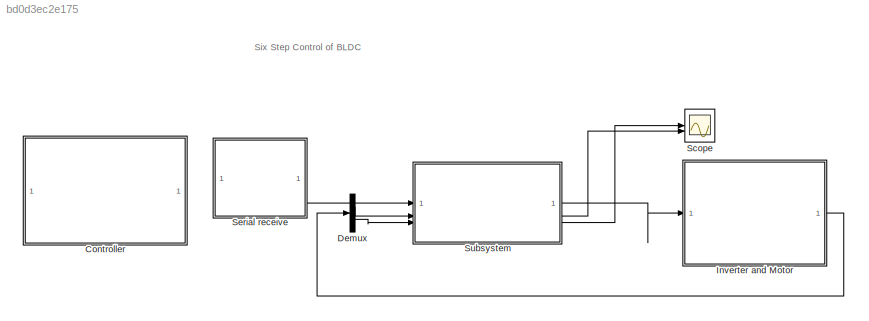
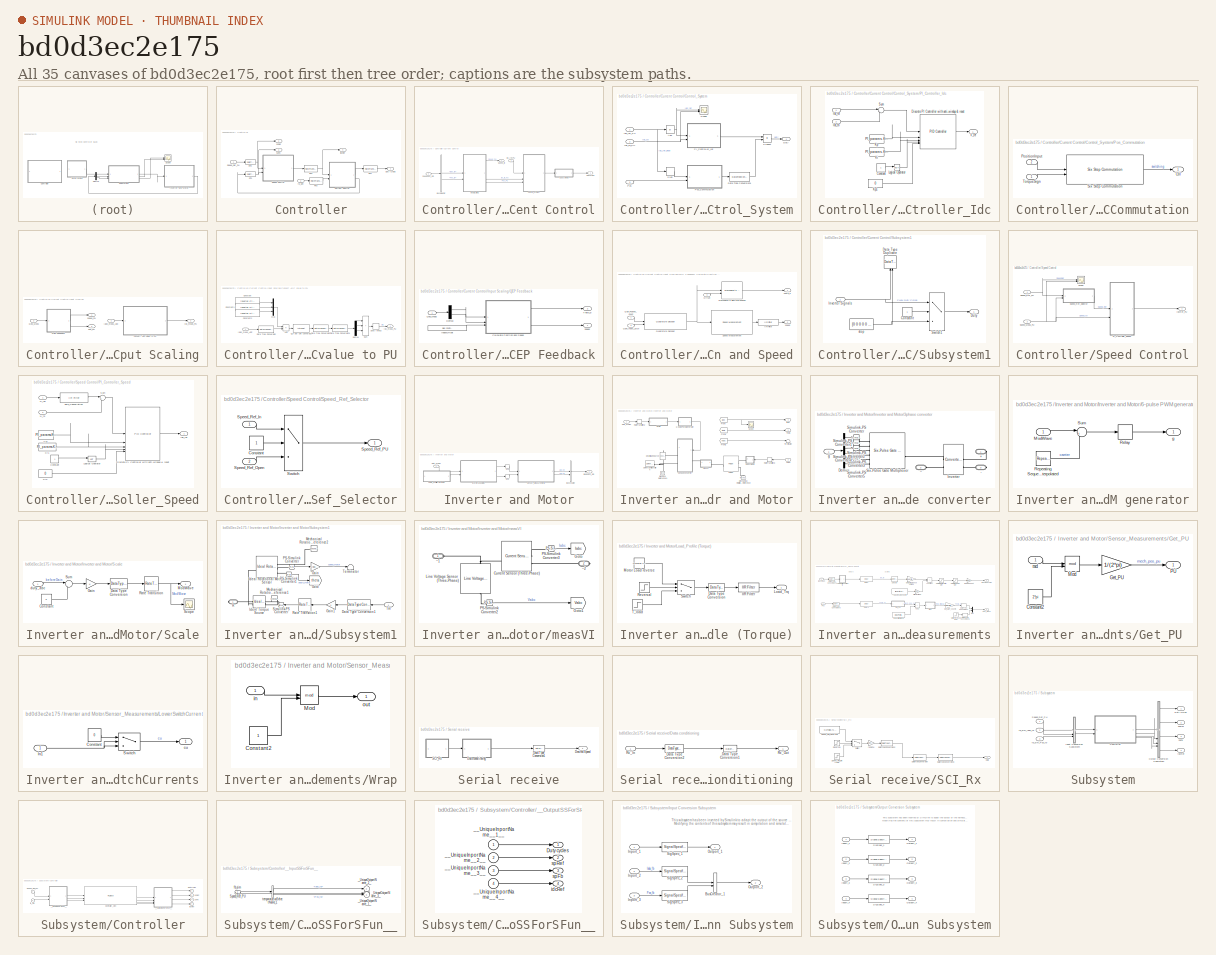
[diagram: thumbnail index - all 35 canvases of the model, root first then tree order]
MODEL slx_bd0d3ec2e175
KIND model
CONFIG AbsTol = auto
CONFIG EnableMultiTasking = on
CONFIG FixedStep = auto
CONFIG MaxStep = auto
CONFIG MinStep = auto
CONFIG RelTol = 1e-3
CONFIG SampleTimeConstraint = Unconstrained
CONFIG SolverName = FixedStepDiscrete
CONFIG StartTime = 0.0
CONFIG StopTime = 2
BLOCK [SubSystem] Controller
  Commented = on
  TreatAsAtomicUnit = on
BLOCK [SubSystem] Controller/Current Control
  RTWMemSecFuncExecute = code_ramfuncs
  RTWSystemCode = Nonreusable function
BLOCK [BusSelector] Controller/Current Control/Bus Selector
  OutputSignals = Iabc_fb,Pos_fb
BLOCK [SubSystem] Controller/Current Control/Control_System
BLOCK [Abs] Controller/Current Control/Control_System/Abs
  SaturateOnIntegerOverflow = off
BLOCK [DataTypeConversion] Controller/Current Control/Control_System/Data Type Conversion1
  OutDataTypeStr = dataType
  RndMeth = Simplest
  SaturateOnIntegerOverflow = off
BLOCK [Outport] Controller/Current Control/Control_System/Duty
  VectorParamsAs1DForOutWhenUnconnected = off
BLOCK [Inport] Controller/Current Control/Control_System/Idc_fb_PU
  Port = 2
BLOCK [Inport] Controller/Current Control/Control_System/Idc_ref_PU
BLOCK [SubSystem] Controller/Current Control/Control_System/PI_Controller_Idc
BLOCK [Constant] Controller/Current Control/Control_System/PI_Controller_Idc/Constant
BLOCK [Reference] Controller/Current Control/Control_System/PI_Controller_Idc/Discrete PI Controller with anti-windup & reset  REF=slpidlib/PID Controller
  LibrarySourceBlock = mcbcontrolslib/PI Controller
  SourceBlock = slpidlib/PID Controller
  SourceType = PID 1dof
BLOCK [Inport] Controller/Current Control/Control_System/PI_Controller_Idc/Idc_fb
  Port = 2
BLOCK [Inport] Controller/Current Control/Control_System/PI_Controller_Idc/Idc_ref
BLOCK [Constant] Controller/Current Control/Control_System/PI_Controller_Idc/Ki
  NameLocation = left
  OutDataTypeStr = dataType
  SampleTime = -1
  Value = PI_params.Ki_i*Ts
BLOCK [Constant] Controller/Current Control/Control_System/PI_Controller_Idc/Kp
  NameLocation = left
  OutDataTypeStr = dataType
  SampleTime = -1
  Value = PI_params.Kp_i
BLOCK [Constant] Controller/Current Control/Control_System/PI_Controller_Idc/Kp1
  NameLocation = top
  OutDataTypeStr = dataType
  SampleTime = -1
  Value = 0
BLOCK [Logic] Controller/Current Control/Control_System/PI_Controller_Idc/Logical Operator
  AllPortsSameDT = off
  IconShape = distinctive
  Operator = NOT
  OutDataTypeStr = boolean
BLOCK [Sum] Controller/Current Control/Control_System/PI_Controller_Idc/Sum
  AccumDataTypeStr = Inherit: Same as first input
  Inputs = |+-
  OutDataTypeStr = Inherit: Same as first input
BLOCK [Outport] Controller/Current Control/Control_System/PI_Controller_Idc/V_ref
  VectorParamsAs1DForOutWhenUnconnected = off
BLOCK [Inport] Controller/Current Control/Control_System/Pos
  Port = 3
BLOCK [SubSystem] Controller/Current Control/Control_System/Pos_Commutation
BLOCK [Outport] Controller/Current Control/Control_System/Pos_Commutation/Ctrl
BLOCK [Inport] Controller/Current Control/Control_System/Pos_Commutation/PositionInput
  Port = 2
BLOCK [Reference] Controller/Current Control/Control_System/Pos_Commutation/Six Step Commutation  REF=mcbcontrolslib/Six Step Commutation
  SourceBlock = mcbcontrolslib/Six Step Commutation
  SourceType = Six-Step Commutation
BLOCK [Inport] Controller/Current Control/Control_System/Pos_Commutation/TorqueSign
BLOCK [Product] Controller/Current Control/Control_System/Product
  OutDataTypeStr = Inherit: Same as first input
  RndMeth = Simplest
BLOCK [Scope] Controller/Current Control/Control_System/Scope
  Floating = off
  NumInputPorts = 2
  ScopeSpecificationString = Simulink.scopes.TimeScopeBlockCfg('CurrentConfiguration', extmgr.ConfigurationSet(extmgr.Configuration('Core','General UI',true,'FigureColor',[1 1 1]),extmgr.Configuration('Core','Source UI',true),extmgr.Configuration('Sources','WiredSimulink',true,'DataLoggingVariableName','ScopeData1'),extmgr.Configuration('Visuals','Time Domain',true,'SerializedDisplays',{struct('MinYLimReal','-0.125','MaxYLimR...<+2250ch>
BLOCK [Signum] Controller/Current Control/Control_System/Sign
BLOCK [Outport] Controller/Current Control/Duty Cycles
  InitialOutput = 0
  VectorParamsAs1DForOutWhenUnconnected = off
BLOCK [Inport] Controller/Current Control/Feedback_sim
  Port = 2
BLOCK [Inport] Controller/Current Control/Idc_ref_PU
BLOCK [SubSystem] Controller/Current Control/Input Scaling
BLOCK [SubSystem] Controller/Current Control/Input Scaling/Convert ADC value to PU
BLOCK [Sum] Controller/Current Control/Input Scaling/Convert ADC value to PU/Add
  IconShape = rectangular
  Inputs = -+
BLOCK [Constant] Controller/Current Control/Input Scaling/Convert ADC value to PU/Constant
  Value = inverter.CtSensAOffset
BLOCK [Constant] Controller/Current Control/Input Scaling/Convert ADC value to PU/Constant1
  Value = inverter.CtSensBOffset
BLOCK [Constant] Controller/Current Control/Input Scaling/Convert ADC value to PU/Constant2
  Value = inverter.CtSensCOffset
BLOCK [DataTypeConversion] Controller/Current Control/Input Scaling/Convert ADC value to PU/Data Type Conversion
  ConvertRealWorld = Stored Integer (SI)
  OutDataTypeStr = int32
  RndMeth = Floor
  SaturateOnIntegerOverflow = off
BLOCK [DataTypeConversion] Controller/Current Control/Input Scaling/Convert ADC value to PU/Data Type Conversion1
  OutDataTypeStr = dataType
  RndMeth = Floor
  SaturateOnIntegerOverflow = off
BLOCK [DataTypeConversion] Controller/Current Control/Input Scaling/Convert ADC value to PU/Data Type Conversion3
  ConvertRealWorld = Stored Integer (SI)
  OutDataTypeStr = fixdt(1,32,17)
  RndMeth = Simplest
  SaturateOnIntegerOverflow = off
BLOCK [Demux] Controller/Current Control/Input Scaling/Convert ADC value to PU/Demux
  Outputs = 3
BLOCK [Inport] Controller/Current Control/Input Scaling/Convert ADC value to PU/Iabc_meas_ADC
BLOCK [Outport] Controller/Current Control/Input Scaling/Convert ADC value to PU/Idc_meas_PU
BLOCK [Mux] Controller/Current Control/Input Scaling/Convert ADC value to PU/Mux
  DisplayOption = bar
  Inputs = 3
BLOCK [ArithShift] Controller/Current Control/Input Scaling/Convert ADC value to PU/Q17 per unit conversion
  BitShiftNumber = -6
  InputPortMap = u0
BLOCK [Sum] Controller/Current Control/Input Scaling/Convert ADC value to PU/Sum
  IconShape = rectangular
  Inputs = |+++
BLOCK [UnaryMinus] Controller/Current Control/Input Scaling/Convert ADC value to PU/Unary Minus
BLOCK [Inport] Controller/Current Control/Input Scaling/Iabc_meas_ADC
BLOCK [Outport] Controller/Current Control/Input Scaling/Idc_meas_PU
  Port = 2
  VectorParamsAs1DForOutWhenUnconnected = off
BLOCK [Outport] Controller/Current Control/Input Scaling/Pos_PU
  InitialOutput = 0
  Port = 3
  VectorParamsAs1DForOutWhenUnconnected = off
BLOCK [SubSystem] Controller/Current Control/Input Scaling/QEP Feedback
  TreatAsAtomicUnit = on
BLOCK [SubSystem] Controller/Current Control/Input Scaling/QEP Feedback/ Calculate Position and Speed
BLOCK [Reference] Controller/Current Control/Input Scaling/QEP Feedback/ Calculate Position and Speed/IIR Filter  REF=mcbcontrolslib/IIR Filter
  SourceBlock = mcbcontrolslib/IIR Filter
  SourceType = IIR Filter
BLOCK [Reference] Controller/Current Control/Input Scaling/QEP Feedback/ Calculate Position and Speed/Mechanical to Electrical Position  REF=mcbpositiondecoderlib/Mechanical to Electrical Position
  SourceBlock = mcbpositiondecoderlib/Mechanical to Electrical Position
  SourceType = Mechanical to Electrical Position
BLOCK [Inport] Controller/Current Control/Input Scaling/QEP Feedback/ Calculate Position and Speed/Offset
  Port = 3
BLOCK [Inport] Controller/Current Control/Input Scaling/QEP Feedback/ Calculate Position and Speed/QEP_Index_Latch
  Port = 2
BLOCK [Inport] Controller/Current Control/Input Scaling/QEP Feedback/ Calculate Position and Speed/QEP_Position_Count
BLOCK [Reference] Controller/Current Control/Input Scaling/QEP Feedback/ Calculate Position and Speed/Quadrature Decoder  REF=mcbpositiondecoderlib/Quadrature Decoder
  SourceBlock = mcbpositiondecoderlib/Quadrature Decoder
  SourceType = Quadrature Decoder
BLOCK [Reference] Controller/Current Control/Input Scaling/QEP Feedback/ Calculate Position and Speed/Speed Measurement  REF=mcbpositiondecoderlib/Speed Measurement
  SourceBlock = mcbpositiondecoderlib/Speed Measurement
  SourceType = Speed Measurement
BLOCK [Outport] Controller/Current Control/Input Scaling/QEP Feedback/ Calculate Position and Speed/Theta_e
  VectorParamsAs1DForOutWhenUnconnected = off
BLOCK [Outport] Controller/Current Control/Input Scaling/QEP Feedback/ Calculate Position and Speed/speed
  Port = 2
  VectorParamsAs1DForOutWhenUnconnected = off
BLOCK [Demux] Controller/Current Control/Input Scaling/QEP Feedback/Demux
  Outputs = 2
BLOCK [Constant] Controller/Current Control/Input Scaling/QEP Feedback/IndexOffset
  OutDataTypeStr = dataType
  SampleTime = -1
  Value = bldc.PositionOffset
BLOCK [Inport] Controller/Current Control/Input Scaling/QEP Feedback/Qep_Meas
BLOCK [Outport] Controller/Current Control/Input Scaling/QEP Feedback/Theta_e
  Port = 2
BLOCK [Outport] Controller/Current Control/Input Scaling/QEP Feedback/speed
BLOCK [Inport] Controller/Current Control/Input Scaling/Qep_Meas
  Port = 2
BLOCK [Outport] Controller/Current Control/Input Scaling/speed_PU
  InitialOutput = 0
  VectorParamsAs1DForOutWhenUnconnected = off
BLOCK [Outport] Controller/Current Control/Speed_fb
  InitialOutput = 0
  Port = 2
  VectorParamsAs1DForOutWhenUnconnected = off
BLOCK [SubSystem] Controller/Current Control/Subsystem1
BLOCK [Constant] Controller/Current Control/Subsystem1/Constant
BLOCK [DataTypeDuplicate] Controller/Current Control/Subsystem1/Data Type Duplicate
BLOCK [Outport] Controller/Current Control/Subsystem1/Duty
  VectorParamsAs1DForOutWhenUnconnected = off
BLOCK [Inport] Controller/Current Control/Subsystem1/Inverter Signals
BLOCK [Switch] Controller/Current Control/Subsystem1/Switch1
  InputSameDT = off
  RndMeth = Simplest
  SaturateOnIntegerOverflow = off
  Threshold = 0.5
BLOCK [Constant] Controller/Current Control/Subsystem1/stop
  OutDataTypeStr = Inherit: Inherit via back propagation
  Value = [0 0 0 0 0 0]
BLOCK [Outport] Controller/Duty cycles
BLOCK [RateTransition] Controller/RT1
  Deterministic = off
  NameLocation = top
  OutPortSampleTime = Ts_speed
BLOCK [RateTransition] Controller/RT2
  Deterministic = off
BLOCK [RateTransition] Controller/RT3
  Deterministic = off
BLOCK [RateTransition] Controller/RT4
  Deterministic = off
BLOCK [RateTransition] Controller/RT9
  Deterministic = off
BLOCK [SubSystem] Controller/Speed Control
  RTWSystemCode = Reusable function
  SystemSampleTime = Ts_speed
  TreatAsAtomicUnit = on
BLOCK [Outport] Controller/Speed Control/IdcRef_PU
  VectorParamsAs1DForOutWhenUnconnected = off
BLOCK [SubSystem] Controller/Speed Control/PI_Controller_Speed
BLOCK [Constant] Controller/Speed Control/PI_Controller_Speed/Constant
BLOCK [Reference] Controller/Speed Control/PI_Controller_Speed/Discrete PI Controller with anti-windup & reset  REF=slpidlib/PID Controller
  LibrarySourceBlock = mcbcontrolslib/PI Controller
  SourceBlock = slpidlib/PID Controller
  SourceType = PID 1dof
BLOCK [Outport] Controller/Speed Control/PI_Controller_Speed/Idc_ref
  VectorParamsAs1DForOutWhenUnconnected = off
BLOCK [Constant] Controller/Speed Control/PI_Controller_Speed/Ki1
  NameLocation = top
  OutDataTypeStr = dataType
  SampleTime = -1
  Value = PI_params.Ki_speed*Ts_speed
BLOCK [Constant] Controller/Speed Control/PI_Controller_Speed/Ki2
  NameLocation = top
  OutDataTypeStr = dataType
  SampleTime = -1
  Value = 0
BLOCK [Constant] Controller/Speed Control/PI_Controller_Speed/Kp1
  NameLocation = top
  OutDataTypeStr = dataType
  SampleTime = -1
  Value = PI_params.Kp_speed
BLOCK [Logic] Controller/Speed Control/PI_Controller_Speed/Logical Operator
  AllPortsSameDT = off
  IconShape = distinctive
  Operator = NOT
  OutDataTypeStr = boolean
BLOCK [Inport] Controller/Speed Control/PI_Controller_Speed/N_fb
  Port = 2
BLOCK [Inport] Controller/Speed Control/PI_Controller_Speed/N_ref
BLOCK [Sum] Controller/Speed Control/PI_Controller_Speed/Sum
  AccumDataTypeStr = Inherit: Same as first input
  Inputs = |+-
  RndMeth = Round
BLOCK [Reference] Controller/Speed Control/PI_Controller_Speed/Zero_Cancellation  REF=mcbcontrolslib/IIR Filter
  SourceBlock = mcbcontrolslib/IIR Filter
  SourceType = IIR Filter
BLOCK [Scope] Controller/Speed Control/Scope
  Floating = off
  NumInputPorts = 2
  ScopeSpecificationString = Simulink.scopes.TimeScopeBlockCfg('CurrentConfiguration', extmgr.ConfigurationSet(extmgr.Configuration('Core','General UI',true,'FigureColor',[1 1 1]),extmgr.Configuration('Core','Source UI',true),extmgr.Configuration('Sources','WiredSimulink',true,'DataLoggingSaveFormat','Array','DataLoggingLimitDataPoints',true,'DataLoggingDecimation','1'),extmgr.Configuration('Visuals','Time Domain',true,'PlotT...<+1938ch>
BLOCK [Inport] Controller/Speed Control/Speed_Meas_PU
  Port = 2
BLOCK [Inport] Controller/Speed Control/Speed_Ref_PU
BLOCK [SubSystem] Controller/Speed Control/Speed_Ref_Selector
BLOCK [Constant] Controller/Speed Control/Speed_Ref_Selector/Constant
BLOCK [Inport] Controller/Speed Control/Speed_Ref_Selector/Speed_Ref_In
BLOCK [Inport] Controller/Speed Control/Speed_Ref_Selector/Speed_Ref_Open
  Port = 2
BLOCK [Outport] Controller/Speed Control/Speed_Ref_Selector/Speed_Ref_PU
BLOCK [Switch] Controller/Speed Control/Speed_Ref_Selector/Switch
  Criteria = u2 > Threshold
  InputSameDT = off
  SaturateOnIntegerOverflow = off
  Threshold = 0.5
BLOCK [Inport] Controller/Speed_Ref_PU
BLOCK [Inport] Controller/fb_sim
  Port = 2
BLOCK [Outport] Controller/idcRef
  Port = 4
BLOCK [Outport] Controller/spFb
  Port = 3
BLOCK [Outport] Controller/spRef
  Port = 2
BLOCK [Demux] Demux
  Outputs = 2
BLOCK [SubSystem] Inverter and Motor
BLOCK [BusCreator] Inverter and Motor/Bus Creator
  DisplayOption = bar
  InheritFromInputs = on
  Inputs = 2
BLOCK [Inport] Inverter and Motor/Duty_Cycles
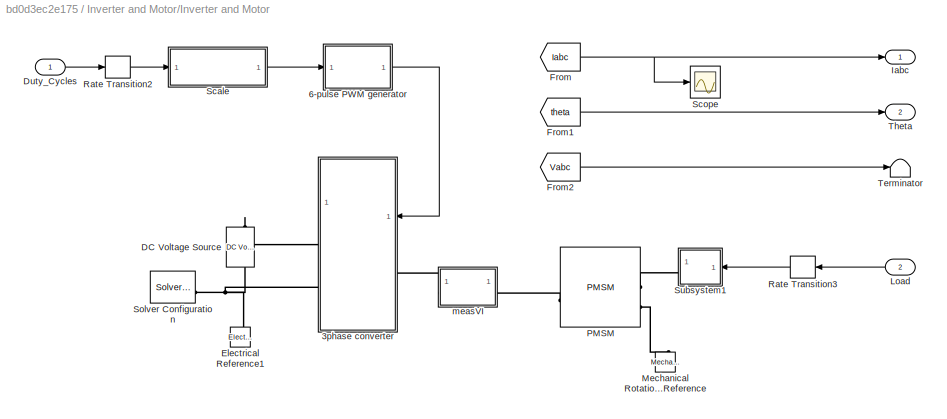
BLOCK [SubSystem] Inverter and Motor/Inverter and Motor
  VariantControl = get_param([bdroot '/Plant'],'Value')=='0'
BLOCK [SubSystem] Inverter and Motor/Inverter and Motor/3phase converter
  NameLocation = top
BLOCK [PMIOPort] Inverter and Motor/Inverter and Motor/3phase converter/+
  Side = Right
BLOCK [PMIOPort] Inverter and Motor/Inverter and Motor/3phase converter/-
  Port = 3
  Side = Right
BLOCK [Demux] Inverter and Motor/Inverter and Motor/3phase converter/Demux
  Outputs = 6
BLOCK [Reference] Inverter and Motor/Inverter and Motor/3phase converter/Inverter  REF=ee_lib/Semiconductors &
Converters/Converters/Converter
(Three-Phase)
  SourceBlock = ee_lib/Semiconductors &\nConverters/Converters/Converter\n(Three-Phase)
  SourceType = Converter\n(Three-Phase)
BLOCK [Reference] Inverter and Motor/Inverter and Motor/3phase converter/Simulink-PS Converter  REF=nesl_utility/Simulink-PS
Converter
  SourceBlock = nesl_utility/Simulink-PS\nConverter
  SourceType = Simulink-PS\nConverter
BLOCK [Reference] Inverter and Motor/Inverter and Motor/3phase converter/Simulink-PS Converter1  REF=nesl_utility/Simulink-PS
Converter
  SourceBlock = nesl_utility/Simulink-PS\nConverter
  SourceType = Simulink-PS\nConverter
BLOCK [Reference] Inverter and Motor/Inverter and Motor/3phase converter/Simulink-PS Converter2  REF=nesl_utility/Simulink-PS
Converter
  SourceBlock = nesl_utility/Simulink-PS\nConverter
  SourceType = Simulink-PS\nConverter
BLOCK [Reference] Inverter and Motor/Inverter and Motor/3phase converter/Simulink-PS Converter3  REF=nesl_utility/Simulink-PS
Converter
  SourceBlock = nesl_utility/Simulink-PS\nConverter
  SourceType = Simulink-PS\nConverter
BLOCK [Reference] Inverter and Motor/Inverter and Motor/3phase converter/Simulink-PS Converter4  REF=nesl_utility/Simulink-PS
Converter
  SourceBlock = nesl_utility/Simulink-PS\nConverter
  SourceType = Simulink-PS\nConverter
BLOCK [Reference] Inverter and Motor/Inverter and Motor/3phase converter/Simulink-PS Converter5  REF=nesl_utility/Simulink-PS
Converter
  SourceBlock = nesl_utility/Simulink-PS\nConverter
  SourceType = Simulink-PS\nConverter
BLOCK [Reference] Inverter and Motor/Inverter and Motor/3phase converter/Six-Pulse Gate Multiplexer  REF=ee_lib/Semiconductors &
Converters/Converters/Six-Pulse Gate
Multiplexer
  SourceBlock = ee_lib/Semiconductors &\nConverters/Converters/Six-Pulse Gate\nMultiplexer
  SourceType = Six-Pulse Gate\nMultiplexer
BLOCK [Inport] Inverter and Motor/Inverter and Motor/3phase converter/g
BLOCK [PMIOPort] Inverter and Motor/Inverter and Motor/3phase converter/~
  Port = 2
  Side = Left
BLOCK [SubSystem] Inverter and Motor/Inverter and Motor/6-pulse PWM generator
BLOCK [Inport] Inverter and Motor/Inverter and Motor/6-pulse PWM generator/ModWave
BLOCK [Relay] Inverter and Motor/Inverter and Motor/6-pulse PWM generator/Relay
BLOCK [Reference] Inverter and Motor/Inverter and Motor/6-pulse PWM generator/Repeating Sequence Interpolated  REF=simulink/Sources/Repeating
Sequence
Interpolated
  SourceBlock = simulink/Sources/Repeating\nSequence\nInterpolated
  SourceType = Repeating Sequence Interpolated
BLOCK [Sum] Inverter and Motor/Inverter and Motor/6-pulse PWM generator/Sum
  Inputs = |+-
BLOCK [Outport] Inverter and Motor/Inverter and Motor/6-pulse PWM generator/g
  NameLocation = top
BLOCK [Reference] Inverter and Motor/Inverter and Motor/DC Voltage Source  REF=fl_lib/Electrical/Electrical Sources/DC Voltage Source
  NameLocation = left
  SourceBlock = fl_lib/Electrical/Electrical Sources/DC Voltage Source
  SourceType = DC Voltage Source
BLOCK [Inport] Inverter and Motor/Inverter and Motor/Duty_Cycles
BLOCK [Reference] Inverter and Motor/Inverter and Motor/Electrical Reference1  REF=fl_lib/Electrical/Electrical Elements/Electrical Reference
  NameLocation = right
  SourceBlock = fl_lib/Electrical/Electrical Elements/Electrical Reference
  SourceType = Electrical Reference
BLOCK [From] Inverter and Motor/Inverter and Motor/From
  GotoTag = Iabc
  TagVisibility = global
BLOCK [From] Inverter and Motor/Inverter and Motor/From1
  GotoTag = theta
  TagVisibility = global
BLOCK [From] Inverter and Motor/Inverter and Motor/From2
  GotoTag = Vabc
  TagVisibility = global
BLOCK [Outport] Inverter and Motor/Inverter and Motor/Iabc
BLOCK [Inport] Inverter and Motor/Inverter and Motor/Load
  Port = 2
BLOCK [Reference] Inverter and Motor/Inverter and Motor/Mechanical Rotational Reference  REF=fl_lib/Mechanical/Rotational Elements/Mechanical
Rotational Reference
  NameLocation = right
  SourceBlock = fl_lib/Mechanical/Rotational Elements/Mechanical\nRotational Reference
  SourceType = Mechanical\nRotational Reference
BLOCK [Reference] Inverter and Motor/Inverter and Motor/PMSM  REF=ee_lib/Electromechanical/Permanent Magnet/PMSM
  SourceBlock = ee_lib/Electromechanical/Permanent Magnet/PMSM
  SourceType = PMSM
BLOCK [RateTransition] Inverter and Motor/Inverter and Motor/Rate Transition2
  Deterministic = off
  OutPortSampleTime = Ts_motor_simscape
BLOCK [RateTransition] Inverter and Motor/Inverter and Motor/Rate Transition3
  Deterministic = off
  NameLocation = top
  OutPortSampleTime = Ts_motor_simscape
BLOCK [SubSystem] Inverter and Motor/Inverter and Motor/Scale
BLOCK [Constant] Inverter and Motor/Inverter and Motor/Scale/Constant
  OutDataTypeStr = single
  SampleTime = Ts_motor_simscape
  Value = 0
BLOCK [DataTypeConversion] Inverter and Motor/Inverter and Motor/Scale/Data Type Conversion
  RndMeth = Floor
  SaturateOnIntegerOverflow = off
BLOCK [Gain] Inverter and Motor/Inverter and Motor/Scale/Gain
BLOCK [Outport] Inverter and Motor/Inverter and Motor/Scale/ModWave
BLOCK [RateTransition] Inverter and Motor/Inverter and Motor/Scale/Rate Transition
BLOCK [Scope] Inverter and Motor/Inverter and Motor/Scale/Scope
  Floating = off
  NumInputPorts = 1
  ScopeSpecificationString = Simulink.scopes.TimeScopeBlockCfg('CurrentConfiguration', extmgr.ConfigurationSet(extmgr.Configuration('Core','General UI',true),extmgr.Configuration('Core','Source UI',true),extmgr.Configuration('Sources','WiredSimulink',true,'DataLoggingVariableName','ScopeData1'),extmgr.Configuration('Visuals','Time Domain',true,'SerializedDisplays',{struct('MinYLimReal','-0.125','MaxYLimReal','1.125','YLabelRe...<+1481ch>
BLOCK [Sum] Inverter and Motor/Inverter and Motor/Scale/Sum
  Inputs = |++
BLOCK [Inport] Inverter and Motor/Inverter and Motor/Scale/duty_abc
BLOCK [Scope] Inverter and Motor/Inverter and Motor/Scope
  Floating = off
  NumInputPorts = 1
  ScopeSpecificationString = Simulink.scopes.TimeScopeBlockCfg('CurrentConfiguration', extmgr.ConfigurationSet(extmgr.Configuration('Core','General UI',true),extmgr.Configuration('Core','Source UI',true),extmgr.Configuration('Sources','WiredSimulink',true,'DataLoggingVariableName','ScopeData3'),extmgr.Configuration('Visuals','Time Domain',true,'SerializedDisplays',{struct('MinYLimReal','-27.85542','MaxYLimReal','27.85744','YL...<+1460ch>
BLOCK [Reference] Inverter and Motor/Inverter and Motor/Solver Configuration  REF=nesl_utility/Solver
Configuration
  SourceBlock = nesl_utility/Solver\nConfiguration
  SourceType = Solver\nConfiguration
BLOCK [SubSystem] Inverter and Motor/Inverter and Motor/Subsystem1
  NameLocation = top
BLOCK [DataTypeConversion] Inverter and Motor/Inverter and Motor/Subsystem1/Data Type Conversion1
  NameLocation = top
  RndMeth = Floor
  SaturateOnIntegerOverflow = off
BLOCK [Gain] Inverter and Motor/Inverter and Motor/Subsystem1/Gain
  Gain = 1/bldc.N_base
BLOCK [Gain] Inverter and Motor/Inverter and Motor/Subsystem1/Gain1
  Gain = -1
  NameLocation = top
BLOCK [Goto] Inverter and Motor/Inverter and Motor/Subsystem1/Goto
  GotoTag = theta
  TagVisibility = global
BLOCK [Reference] Inverter and Motor/Inverter and Motor/Subsystem1/Ideal Rotational Motion Sensor  REF=fl_lib/Mechanical/Mechanical Sensors/Ideal Rotational
Motion Sensor
  SourceBlock = fl_lib/Mechanical/Mechanical Sensors/Ideal Rotational\nMotion Sensor
  SourceType = Ideal Rotational\nMotion Sensor
BLOCK [Reference] Inverter and Motor/Inverter and Motor/Subsystem1/Ideal Torque Source  REF=fl_lib/Mechanical/Mechanical Sources/Ideal Torque Source
  NameLocation = top
  SourceBlock = fl_lib/Mechanical/Mechanical Sources/Ideal Torque Source
  SourceType = Ideal Torque Source
BLOCK [Reference] Inverter and Motor/Inverter and Motor/Subsystem1/Mechanical Rotational Reference1  REF=fl_lib/Mechanical/Rotational Elements/Mechanical
Rotational Reference
  NameLocation = top
  SourceBlock = fl_lib/Mechanical/Rotational Elements/Mechanical\nRotational Reference
  SourceType = Mechanical\nRotational Reference
BLOCK [Reference] Inverter and Motor/Inverter and Motor/Subsystem1/Mechanical Rotational Reference2  REF=fl_lib/Mechanical/Rotational Elements/Mechanical
Rotational Reference
  NameLocation = top
  SourceBlock = fl_lib/Mechanical/Rotational Elements/Mechanical\nRotational Reference
  SourceType = Mechanical\nRotational Reference
BLOCK [Reference] Inverter and Motor/Inverter and Motor/Subsystem1/PS-Simulink Converter  REF=nesl_utility/PS-Simulink
Converter
  SourceBlock = nesl_utility/PS-Simulink\nConverter
  SourceType = PS-Simulink\nConverter
BLOCK [Reference] Inverter and Motor/Inverter and Motor/Subsystem1/PS-Simulink Converter1  REF=nesl_utility/PS-Simulink
Converter
  SourceBlock = nesl_utility/PS-Simulink\nConverter
  SourceType = PS-Simulink\nConverter
BLOCK [PMIOPort] Inverter and Motor/Inverter and Motor/Subsystem1/R 
  Side = Right
BLOCK [RateTransition] Inverter and Motor/Inverter and Motor/Subsystem1/Rate Transition1
  NameLocation = top
BLOCK [Reference] Inverter and Motor/Inverter and Motor/Subsystem1/Simulink-PS Converter  REF=nesl_utility/Simulink-PS
Converter
  NameLocation = top
  SourceBlock = nesl_utility/Simulink-PS\nConverter
  SourceType = Simulink-PS\nConverter
BLOCK [Terminator] Inverter and Motor/Inverter and Motor/Subsystem1/Terminator
BLOCK [Inport] Inverter and Motor/Inverter and Motor/Subsystem1/Tm
BLOCK [Terminator] Inverter and Motor/Inverter and Motor/Terminator
BLOCK [Outport] Inverter and Motor/Inverter and Motor/Theta
  Port = 2
BLOCK [SubSystem] Inverter and Motor/Inverter and Motor/measVI
BLOCK [Reference] Inverter and Motor/Inverter and Motor/measVI/Current Sensor (Three-Phase)  REF=ee_lib/Sensors &
Transducers/Current Sensor
(Three-Phase)
  SourceBlock = ee_lib/Sensors &\nTransducers/Current Sensor\n(Three-Phase)
  SourceType = Current Sensor\n(Three-Phase)
BLOCK [Goto] Inverter and Motor/Inverter and Motor/measVI/Goto
  GotoTag = Iabc
  TagVisibility = global
BLOCK [Goto] Inverter and Motor/Inverter and Motor/measVI/Goto1
  GotoTag = Vabc
  TagVisibility = global
BLOCK [Reference] Inverter and Motor/Inverter and Motor/measVI/Line Voltage Sensor (Three-Phase)  REF=ee_lib/Sensors &
Transducers/Line Voltage Sensor
(Three-Phase)
  NameLocation = right
  SourceBlock = ee_lib/Sensors &\nTransducers/Line Voltage Sensor\n(Three-Phase)
  SourceType = Line Voltage Sensor\n(Three-Phase)
BLOCK [Reference] Inverter and Motor/Inverter and Motor/measVI/PS-Simulink Converter2  REF=nesl_utility/PS-Simulink
Converter
  SourceBlock = nesl_utility/PS-Simulink\nConverter
  SourceType = PS-Simulink\nConverter
BLOCK [Reference] Inverter and Motor/Inverter and Motor/measVI/PS-Simulink Converter3  REF=nesl_utility/PS-Simulink
Converter
  SourceBlock = nesl_utility/PS-Simulink\nConverter
  SourceType = PS-Simulink\nConverter
BLOCK [PMIOPort] Inverter and Motor/Inverter and Motor/measVI/~1
  Side = Left
BLOCK [PMIOPort] Inverter and Motor/Inverter and Motor/measVI/~2
  Port = 2
  Side = Right
BLOCK [SubSystem] Inverter and Motor/Load_Profile (Torque)
BLOCK [DataTypeConversion] Inverter and Motor/Load_Profile (Torque)/Data Type Conversion
  OutDataTypeStr = single
  RndMeth = Floor
  SaturateOnIntegerOverflow = off
BLOCK [Reference] Inverter and Motor/Load_Profile (Torque)/IIR Filter  REF=mcbcontrolslib/IIR Filter
  SourceBlock = mcbcontrolslib/IIR Filter
  SourceType = IIR Filter
BLOCK [Outport] Inverter and Motor/Load_Profile (Torque)/Load_Trq
  VectorParamsAs1DForOutWhenUnconnected = off
BLOCK [Constant] Inverter and Motor/Load_Profile (Torque)/Motor Load reverse 
  OutDataTypeStr = dataType
  SampleTime = -1
  Value = -0.5*bldc.T_rated
BLOCK [Step] Inverter and Motor/Load_Profile (Torque)/Reversal
  NameLocation = top
  Time = 1.2
BLOCK [Switch] Inverter and Motor/Load_Profile (Torque)/Switch
  Criteria = u2 > Threshold
  InputSameDT = off
  SaturateOnIntegerOverflow = off
BLOCK [Step] Inverter and Motor/Load_Profile (Torque)/T_load
  After = 0.5*bldc.T_rated
  Before = 0.05*bldc.T_rated
  SampleTime = Ts_simulink
  Time = 0.8
BLOCK [RateTransition] Inverter and Motor/RT1
  Deterministic = off
  OutPortSampleTime = Ts_simulink
BLOCK [RateTransition] Inverter and Motor/RT3
  Deterministic = off
  OutPortSampleTime = Ts_simulink
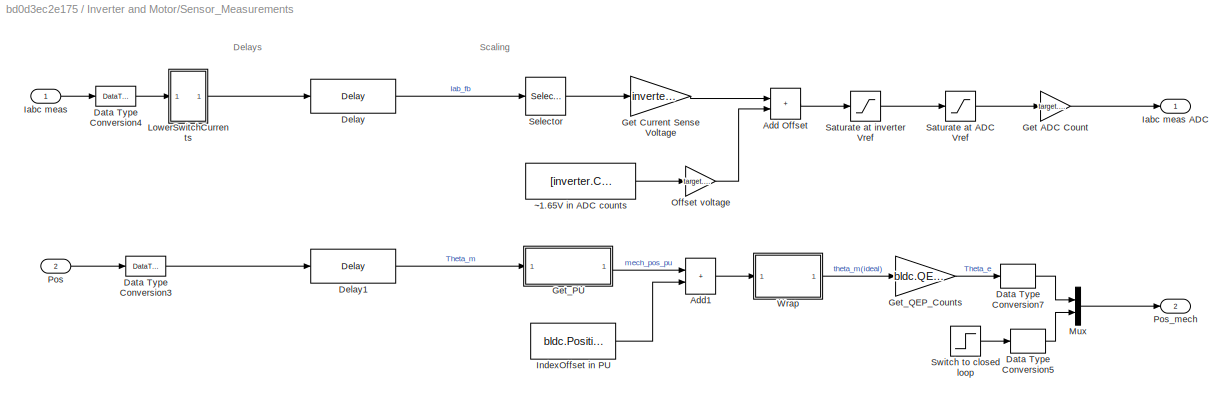
BLOCK [SubSystem] Inverter and Motor/Sensor_Measurements
BLOCK [Sum] Inverter and Motor/Sensor_Measurements/Add Offset
  IconShape = rectangular
  RndMeth = Simplest
BLOCK [Sum] Inverter and Motor/Sensor_Measurements/Add1
  IconShape = rectangular
  RndMeth = Simplest
BLOCK [DataTypeConversion] Inverter and Motor/Sensor_Measurements/Data Type Conversion3
  OutDataTypeStr = single
  RndMeth = Simplest
  SaturateOnIntegerOverflow = off
BLOCK [DataTypeConversion] Inverter and Motor/Sensor_Measurements/Data Type Conversion4
  OutDataTypeStr = single
  RndMeth = Simplest
  SaturateOnIntegerOverflow = off
BLOCK [DataTypeConversion] Inverter and Motor/Sensor_Measurements/Data Type Conversion5
  OutDataTypeStr = uint16
  RndMeth = Simplest
  SaturateOnIntegerOverflow = off
BLOCK [DataTypeConversion] Inverter and Motor/Sensor_Measurements/Data Type Conversion7
  OutDataTypeStr = uint16
  RndMeth = Simplest
  SaturateOnIntegerOverflow = off
BLOCK [Delay] Inverter and Motor/Sensor_Measurements/Delay
  DelayLength = PI_params.delay_Currents
  InputPortMap = u0
BLOCK [Delay] Inverter and Motor/Sensor_Measurements/Delay1
  DelayLength = PI_params.delay_Position
  InputPortMap = u0
BLOCK [Gain] Inverter and Motor/Sensor_Measurements/Get ADC Count
  Gain = target.ADC_MaxCount/target.ADC_Vref
  OutDataTypeStr = uint16
  OutMax = target.ADC_MaxCount
  OutMin = 0
  RndMeth = Simplest
BLOCK [Gain] Inverter and Motor/Sensor_Measurements/Get Current Sense Voltage
  Gain = inverter.ISenseVoltPerAmp
  OutDataTypeStr = Inherit: Same as input
  RndMeth = Simplest
BLOCK [SubSystem] Inverter and Motor/Sensor_Measurements/Get_PU 
BLOCK [Constant] Inverter and Motor/Sensor_Measurements/Get_PU /Constant2
  OutDataTypeStr = single
  SampleTime = -1
  Value = 2*pi
BLOCK [Gain] Inverter and Motor/Sensor_Measurements/Get_PU /Get_PU
  Gain = 1/(2*pi)
  OutDataTypeStr = Inherit: Same as input
  RndMeth = Simplest
BLOCK [Math] Inverter and Motor/Sensor_Measurements/Get_PU /Mod
  Operator = mod
BLOCK [Outport] Inverter and Motor/Sensor_Measurements/Get_PU /PU
  VectorParamsAs1DForOutWhenUnconnected = off
BLOCK [Inport] Inverter and Motor/Sensor_Measurements/Get_PU /rad
BLOCK [Gain] Inverter and Motor/Sensor_Measurements/Get_QEP_Counts
  Gain = bldc.QEPSlits*4
  OutDataTypeStr = uint16
  RndMeth = Simplest
BLOCK [Inport] Inverter and Motor/Sensor_Measurements/Iabc meas
BLOCK [Outport] Inverter and Motor/Sensor_Measurements/Iabc meas ADC
  VectorParamsAs1DForOutWhenUnconnected = off
BLOCK [Constant] Inverter and Motor/Sensor_Measurements/IndexOffset in PU
  OutDataTypeStr = single
  SampleTime = -1
  Value = bldc.PositionOffset
BLOCK [SubSystem] Inverter and Motor/Sensor_Measurements/LowerSwitchCurrents
BLOCK [Constant] Inverter and Motor/Sensor_Measurements/LowerSwitchCurrents/Constant
  Value = 0
BLOCK [Inport] Inverter and Motor/Sensor_Measurements/LowerSwitchCurrents/In1
BLOCK [Switch] Inverter and Motor/Sensor_Measurements/LowerSwitchCurrents/Switch
  Criteria = u2 > Threshold
  InputSameDT = off
  SaturateOnIntegerOverflow = off
BLOCK [Outport] Inverter and Motor/Sensor_Measurements/LowerSwitchCurrents/cu
BLOCK [Mux] Inverter and Motor/Sensor_Measurements/Mux
  DisplayOption = bar
  Inputs = 2
BLOCK [Gain] Inverter and Motor/Sensor_Measurements/Offset voltage
  Gain = target.ADC_Vref / target.ADC_MaxCount
  RndMeth = Simplest
BLOCK [Inport] Inverter and Motor/Sensor_Measurements/Pos
  Port = 2
BLOCK [Outport] Inverter and Motor/Sensor_Measurements/Pos_mech
  Port = 2
BLOCK [Saturate] Inverter and Motor/Sensor_Measurements/Saturate at ADC Vref
  LowerLimit = 0
  UpperLimit = target.ADC_Vref
BLOCK [Saturate] Inverter and Motor/Sensor_Measurements/Saturate at inverter Vref
  LowerLimit = 0
  UpperLimit = inverter.ISenseVref
BLOCK [Selector] Inverter and Motor/Sensor_Measurements/Selector
  IndexOptions = Index vector (dialog)
  Indices = [1 2 3]
  InputPortWidth = 3
  OutputSizes = 1
BLOCK [Step] Inverter and Motor/Sensor_Measurements/Switch to closed loop 
  SampleTime = Ts_motor
  Time = 0.1
BLOCK [SubSystem] Inverter and Motor/Sensor_Measurements/Wrap
BLOCK [Constant] Inverter and Motor/Sensor_Measurements/Wrap/Constant2
  OutDataTypeStr = single
  SampleTime = -1
BLOCK [Math] Inverter and Motor/Sensor_Measurements/Wrap/Mod
  Operator = mod
BLOCK [Inport] Inverter and Motor/Sensor_Measurements/Wrap/in
BLOCK [Outport] Inverter and Motor/Sensor_Measurements/Wrap/out
  VectorParamsAs1DForOutWhenUnconnected = off
BLOCK [Constant] Inverter and Motor/Sensor_Measurements/~1.65V in ADC counts
  OutDataTypeStr = single
  SampleTime = -1
  Value = [inverter.CtSensAOffset inverter.CtSensBOffset  inverter.CtSensCOffset]
BLOCK [Outport] Inverter and Motor/feedback_sim
  VectorParamsAs1DForOutWhenUnconnected = off
BLOCK [Scope] Scope
  Floating = off
  NumInputPorts = 2
  ScopeSpecificationString = Simulink.scopes.TimeScopeBlockCfg('CurrentConfiguration', extmgr.ConfigurationSet(extmgr.Configuration('Core','General UI',true),extmgr.Configuration('Core','Source UI',true),extmgr.Configuration('Sources','WiredSimulink',true,'DataLoggingVariableName','ScopeData1'),extmgr.Configuration('Visuals','Time Domain',true,'SerializedDisplays',{struct('MinYLimReal','-1.00671','MaxYLimReal','1.06235','YLab...<+1449ch>
BLOCK [SubSystem] Serial receive
  SystemSampleTime = 0.1
  TreatAsAtomicUnit = on
BLOCK [DataTypeConversion] Serial receive/Data Type Conversion1
  OutDataTypeStr = dataType
  RndMeth = Simplest
  SaturateOnIntegerOverflow = off
BLOCK [SubSystem] Serial receive/Data conditioning
BLOCK [DataTypeConversion] Serial receive/Data conditioning/Data Type Conversion1
  OutDataTypeStr = single
  RndMeth = Simplest
  SaturateOnIntegerOverflow = off
BLOCK [DataTypeConversion] Serial receive/Data conditioning/Data Type Conversion2
  ConvertRealWorld = Stored Integer (SI)
  OutDataTypeStr = fixdt(1,16,12)
  RndMeth = Simplest
  SaturateOnIntegerOverflow = off
BLOCK [Inport] Serial receive/Data conditioning/Rx_In
BLOCK [Outport] Serial receive/Data conditioning/Rx_Out
  VectorParamsAs1DForOutWhenUnconnected = off
BLOCK [Outport] Serial receive/Desired Speed
  VectorParamsAs1DForOutWhenUnconnected = off
BLOCK [SubSystem] Serial receive/SCI_Rx
BLOCK [Outport] Serial receive/SCI_Rx/Data
BLOCK [DataTypeConversion] Serial receive/SCI_Rx/Data Type Conversion
  OutDataTypeStr = fixdt(1,16,12)
  RndMeth = Simplest
  SaturateOnIntegerOverflow = off
BLOCK [DataTypeConversion] Serial receive/SCI_Rx/Data Type Conversion2
  OutDataTypeStr = single
  RndMeth = Simplest
  SaturateOnIntegerOverflow = off
BLOCK [DataTypeConversion] Serial receive/SCI_Rx/Data Type Conversion3
  ConvertRealWorld = Stored Integer (SI)
  OutDataTypeStr = uint16
  RndMeth = Simplest
  SaturateOnIntegerOverflow = off
BLOCK [Step] Serial receive/SCI_Rx/Reversal
  Time = 1.2
BLOCK [Constant] Serial receive/SCI_Rx/Speed_Ref_Final (rpm)
  OutDataTypeStr = dataType
  SampleTime = -1
  Value = -0.8*bldc.N_base
BLOCK [Step] Serial receive/SCI_Rx/Speed_Ref_Init (rpm)
  After = 0.8*bldc.N_base
  Before = 0.2*bldc.N_base
  Time = 0.5
BLOCK [Switch] Serial receive/SCI_Rx/Switch
  Criteria = u2 > Threshold
  InputSameDT = off
  SaturateOnIntegerOverflow = off
BLOCK [Gain] Serial receive/SCI_Rx/rpm2PU
  Gain = 1/bldc.N_base
  OutDataTypeStr = Inherit: Same as input
  RndMeth = Simplest
BLOCK [SubSystem] Subsystem
BLOCK [SubSystem] Subsystem/Controller
  DialogController = pil_create_dialog
  LoadFcn = try\n   if ~strcmp(rtw.pil.getPILVersion, '23.2 (R2023b)_15')\n      set_param(gcb, 'DialogController', '');\n      set_param(gcb, 'DialogControllerArgs', '');\n   end\ncatch e\n      set_param(gcb, 'DialogController', '');\n      set_param(gcb, 'DialogControllerArgs', '');\nend
  Tag = __SL_testing_harness_stub_
BLOCK [Reference] Subsystem/Controller/Controller_sfcn  REF=pil_lib/PIL Block
  SourceBlock = pil_lib/PIL Block
  SourceType = XILBlock
BLOCK [Outport] Subsystem/Controller/Duty cycles
BLOCK [Inport] Subsystem/Controller/Speed_Ref_PU
BLOCK [SubSystem] Subsystem/Controller/__InputSSForSFun__
  PermitHierarchicalResolution = ExplicitOnly
BLOCK [Inport] Subsystem/Controller/__InputSSForSFun__/Speed_Ref_PU
BLOCK [Outport] Subsystem/Controller/__InputSSForSFun__/__UniqueOutportName__1__
BLOCK [Outport] Subsystem/Controller/__InputSSForSFun__/__UniqueOutportName__2__
  Port = 2
BLOCK [Outport] Subsystem/Controller/__InputSSForSFun__/__UniqueOutportName__3__
  Port = 3
BLOCK [Inport] Subsystem/Controller/__InputSSForSFun__/fb_sim
  Port = 2
BLOCK [BusSelector] Subsystem/Controller/__InputSSForSFun__/temporaryBusSelectName_1
  OutputSignals = Iabc_fb,Pos_fb
BLOCK [SubSystem] Subsystem/Controller/__OutputSSForSFun__
  PermitHierarchicalResolution = ExplicitOnly
BLOCK [Outport] Subsystem/Controller/__OutputSSForSFun__/Duty cycles
BLOCK [Inport] Subsystem/Controller/__OutputSSForSFun__/__UniqueInportName__1__
BLOCK [Inport] Subsystem/Controller/__OutputSSForSFun__/__UniqueInportName__2__
  Port = 2
BLOCK [Inport] Subsystem/Controller/__OutputSSForSFun__/__UniqueInportName__3__
  Port = 3
BLOCK [Inport] Subsystem/Controller/__OutputSSForSFun__/__UniqueInportName__4__
  Port = 4
BLOCK [Outport] Subsystem/Controller/__OutputSSForSFun__/idcRef
  Port = 4
BLOCK [Outport] Subsystem/Controller/__OutputSSForSFun__/spFb
  Port = 3
BLOCK [Outport] Subsystem/Controller/__OutputSSForSFun__/spRef
  Port = 2
BLOCK [Inport] Subsystem/Controller/fb_sim
  Port = 2
BLOCK [Outport] Subsystem/Controller/idcRef
  Port = 4
BLOCK [Outport] Subsystem/Controller/spFb
  Port = 3
BLOCK [Outport] Subsystem/Controller/spRef
  Port = 2
BLOCK [Outport] Subsystem/Duty cycles
BLOCK [SubSystem] Subsystem/Input Conversion Subsystem
  AttributesFormatString = %<Description>
  Description = Signal spec.\nand routing
  Permissions = ReadOnly
  PermitHierarchicalResolution = ExplicitOnly
  Tag = __SLT_ICS__
  TreatAsGroupedWhenPropagatingVariantConditions = off
  UserDataPersistent = on
BLOCK [BusCreator] Subsystem/Input Conversion Subsystem/BusCreator_1
  InheritFromInputs = on
  Inputs = 2
BLOCK [Inport] Subsystem/Input Conversion Subsystem/Inport_1
BLOCK [Inport] Subsystem/Input Conversion Subsystem/Inport_2
  Port = 2
BLOCK [Inport] Subsystem/Input Conversion Subsystem/Inport_3
  Port = 3
BLOCK [Outport] Subsystem/Input Conversion Subsystem/Outport_1
BLOCK [Outport] Subsystem/Input Conversion Subsystem/Outport_2
  Port = 2
BLOCK [SignalSpecification] Subsystem/Input Conversion Subsystem/SigSpec_1
  Dimensions = [1]
  OutDataTypeStr = single
  SampleTime = 0.1
  SignalType = real
  VarSizeSig = No
BLOCK [SignalSpecification] Subsystem/Input Conversion Subsystem/SigSpec_2
  Dimensions = [3]
  OutDataTypeStr = uint16
  SampleTime = 2.5e-05
  SignalType = real
  VarSizeSig = No
BLOCK [SignalSpecification] Subsystem/Input Conversion Subsystem/SigSpec_3
  Dimensions = [2]
  OutDataTypeStr = uint16
  SampleTime = 2.5e-05
  SignalType = real
  VarSizeSig = No
BLOCK [SubSystem] Subsystem/Output Conversion Subsystem
  AttributesFormatString = %<Description>
  Description = Signal spec.\nand routing
  Permissions = ReadOnly
  PermitHierarchicalResolution = ExplicitOnly
  Tag = __SLT_OCS__
  TreatAsGroupedWhenPropagatingVariantConditions = off
  UserDataPersistent = on
BLOCK [Inport] Subsystem/Output Conversion Subsystem/Inport_1
BLOCK [Inport] Subsystem/Output Conversion Subsystem/Inport_2
  Port = 2
BLOCK [Inport] Subsystem/Output Conversion Subsystem/Inport_3
  Port = 3
BLOCK [Inport] Subsystem/Output Conversion Subsystem/Inport_4
  Port = 4
BLOCK [Outport] Subsystem/Output Conversion Subsystem/Outport_1
BLOCK [Outport] Subsystem/Output Conversion Subsystem/Outport_2
  Port = 2
BLOCK [Outport] Subsystem/Output Conversion Subsystem/Outport_3
  Port = 3
BLOCK [Outport] Subsystem/Output Conversion Subsystem/Outport_4
  Port = 4
BLOCK [SignalSpecification] Subsystem/Output Conversion Subsystem/SigSpec_1
  Dimensions = [6]
  OutDataTypeStr = single
  SampleTime = 5e-07
  SignalType = real
  VarSizeSig = No
BLOCK [SignalSpecification] Subsystem/Output Conversion Subsystem/SigSpec_2
  Dimensions = [1]
  OutDataTypeStr = single
  SampleTime = 0.0005
  SignalType = real
  VarSizeSig = No
BLOCK [SignalSpecification] Subsystem/Output Conversion Subsystem/SigSpec_3
  Dimensions = [1]
  OutDataTypeStr = single
  SampleTime = 0.0005
  SignalType = real
  VarSizeSig = No
BLOCK [SignalSpecification] Subsystem/Output Conversion Subsystem/SigSpec_4
  Dimensions = [1]
  OutDataTypeStr = single
  SampleTime = 5e-05
  SignalType = real
  VarSizeSig = No
BLOCK [Inport] Subsystem/Speed_Ref_PU
  OutDataTypeStr = single
  PortDimensions = [1]
  SampleTime = 0.1
  SignalType = real
  VarSizeSig = No
BLOCK [Inport] Subsystem/fb_sim_Iabc_fb
  OutDataTypeStr = uint16
  Port = 2
  PortDimensions = [3]
  SampleTime = 2.5e-05
  SignalType = real
  VarSizeSig = No
BLOCK [Inport] Subsystem/fb_sim_Pos_fb
  OutDataTypeStr = uint16
  Port = 3
  PortDimensions = [2]
  SampleTime = 2.5e-05
  SignalType = real
  VarSizeSig = No
BLOCK [Outport] Subsystem/idcRef
  Port = 4
BLOCK [Outport] Subsystem/spFb
  Port = 3
BLOCK [Outport] Subsystem/spRef
  Port = 2
ANNOTATION (root): Six Step Control of BLDC
ANNOTATION Inverter and Motor/Sensor_Measurements: Delays
ANNOTATION Inverter and Motor/Sensor_Measurements: Scaling
ANNOTATION Subsystem/Input Conversion Subsystem: This subsystem has been inserted by Simulink to adapt the output of the source blocks to the interface required by the harnessed component. Modifying the contents of this subsystem may result in compilation and simulation failure.
ANNOTATION Subsystem/Output Conversion Subsystem: This subsystem has been inserted by Simulink to adapt the output of the harnessed component to the interface required by the sink blocks. Modifying the contents of this subsystem may result in compilation and simulation failure.
LINE Controller/Current Control/Bus Selector:1 -> Controller/Current Control/Input Scaling:1
LINE Controller/Current Control/Bus Selector:2 -> Controller/Current Control/Input Scaling:2
NET Controller/Current Control/Control_System/Abs:1 -> Controller/Current Control/Control_System/PI_Controller_Idc:1, Controller/Current Control/Control_System/Scope:1
LINE Controller/Current Control/Control_System/Data Type Conversion1:1 -> Controller/Current Control/Control_System/Product:2
NET Controller/Current Control/Control_System/Idc_fb_PU:1 -> Controller/Current Control/Control_System/PI_Controller_Idc:2, Controller/Current Control/Control_System/Scope:2
NET Controller/Current Control/Control_System/Idc_ref_PU:1 -> Controller/Current Control/Control_System/Abs:1, Controller/Current Control/Control_System/Sign:1
LINE Controller/Current Control/Control_System/PI_Controller_Idc/Constant:1 -> Controller/Current Control/Control_System/PI_Controller_Idc/Logical Operator:1
LINE Controller/Current Control/Control_System/PI_Controller_Idc/Discrete PI Controller with anti-windup & reset:1 -> Controller/Current Control/Control_System/PI_Controller_Idc/V_ref:1
LINE Controller/Current Control/Control_System/PI_Controller_Idc/Idc_fb:1 -> Controller/Current Control/Control_System/PI_Controller_Idc/Sum:2
LINE Controller/Current Control/Control_System/PI_Controller_Idc/Idc_ref:1 -> Controller/Current Control/Control_System/PI_Controller_Idc/Sum:1
LINE Controller/Current Control/Control_System/PI_Controller_Idc/Ki:1 -> Controller/Current Control/Control_System/PI_Controller_Idc/Discrete PI Controller with anti-windup & reset:3
LINE Controller/Current Control/Control_System/PI_Controller_Idc/Kp1:1 -> Controller/Current Control/Control_System/PI_Controller_Idc/Discrete PI Controller with anti-windup & reset:5
LINE Controller/Current Control/Control_System/PI_Controller_Idc/Kp:1 -> Controller/Current Control/Control_System/PI_Controller_Idc/Discrete PI Controller with anti-windup & reset:2
LINE Controller/Current Control/Control_System/PI_Controller_Idc/Logical Operator:1 -> Controller/Current Control/Control_System/PI_Controller_Idc/Discrete PI Controller with anti-windup & reset:4
LINE Controller/Current Control/Control_System/PI_Controller_Idc/Sum:1 -> Controller/Current Control/Control_System/PI_Controller_Idc/Discrete PI Controller with anti-windup & reset:1
LINE Controller/Current Control/Control_System/PI_Controller_Idc:1 -> Controller/Current Control/Control_System/Product:1
LINE Controller/Current Control/Control_System/Pos:1 -> Controller/Current Control/Control_System/Pos_Commutation:2
LINE Controller/Current Control/Control_System/Pos_Commutation/PositionInput:1 -> Controller/Current Control/Control_System/Pos_Commutation/Six Step Commutation:1
LINE Controller/Current Control/Control_System/Pos_Commutation/Six Step Commutation:1 -> Controller/Current Control/Control_System/Pos_Commutation/Ctrl:1
LINE Controller/Current Control/Control_System/Pos_Commutation/TorqueSign:1 -> Controller/Current Control/Control_System/Pos_Commutation/Six Step Commutation:2
LINE Controller/Current Control/Control_System/Pos_Commutation:1 -> Controller/Current Control/Control_System/Data Type Conversion1:1
LINE Controller/Current Control/Control_System/Product:1 -> Controller/Current Control/Control_System/Duty:1
LINE Controller/Current Control/Control_System/Sign:1 -> Controller/Current Control/Control_System/Pos_Commutation:1
LINE Controller/Current Control/Control_System:1 -> Controller/Current Control/Subsystem1:1
LINE Controller/Current Control/Feedback_sim:1 -> Controller/Current Control/Bus Selector:1
LINE Controller/Current Control/Idc_ref_PU:1 -> Controller/Current Control/Control_System:1
LINE Controller/Current Control/Input Scaling/Convert ADC value to PU/Add:1 -> Controller/Current Control/Input Scaling/Convert ADC value to PU/Q17 per unit conversion:1
LINE Controller/Current Control/Input Scaling/Convert ADC value to PU/Constant1:1 -> Controller/Current Control/Input Scaling/Convert ADC value to PU/Mux:2
LINE Controller/Current Control/Input Scaling/Convert ADC value to PU/Constant2:1 -> Controller/Current Control/Input Scaling/Convert ADC value to PU/Mux:3
LINE Controller/Current Control/Input Scaling/Convert ADC value to PU/Constant:1 -> Controller/Current Control/Input Scaling/Convert ADC value to PU/Mux:1
LINE Controller/Current Control/Input Scaling/Convert ADC value to PU/Data Type Conversion1:1 -> Controller/Current Control/Input Scaling/Convert ADC value to PU/Demux:1
LINE Controller/Current Control/Input Scaling/Convert ADC value to PU/Data Type Conversion3:1 -> Controller/Current Control/Input Scaling/Convert ADC value to PU/Data Type Conversion1:1
LINE Controller/Current Control/Input Scaling/Convert ADC value to PU/Data Type Conversion:1 -> Controller/Current Control/Input Scaling/Convert ADC value to PU/Add:2
LINE Controller/Current Control/Input Scaling/Convert ADC value to PU/Demux:1 -> Controller/Current Control/Input Scaling/Convert ADC value to PU/Sum:1
LINE Controller/Current Control/Input Scaling/Convert ADC value to PU/Demux:2 -> Controller/Current Control/Input Scaling/Convert ADC value to PU/Sum:2
LINE Controller/Current Control/Input Scaling/Convert ADC value to PU/Demux:3 -> Controller/Current Control/Input Scaling/Convert ADC value to PU/Sum:3
LINE Controller/Current Control/Input Scaling/Convert ADC value to PU/Iabc_meas_ADC:1 -> Controller/Current Control/Input Scaling/Convert ADC value to PU/Data Type Conversion:1
LINE Controller/Current Control/Input Scaling/Convert ADC value to PU/Mux:1 -> Controller/Current Control/Input Scaling/Convert ADC value to PU/Add:1
LINE Controller/Current Control/Input Scaling/Convert ADC value to PU/Q17 per unit conversion:1 -> Controller/Current Control/Input Scaling/Convert ADC value to PU/Data Type Conversion3:1
LINE Controller/Current Control/Input Scaling/Convert ADC value to PU/Sum:1 -> Controller/Current Control/Input Scaling/Convert ADC value to PU/Unary Minus:1
LINE Controller/Current Control/Input Scaling/Convert ADC value to PU/Unary Minus:1 -> Controller/Current Control/Input Scaling/Convert ADC value to PU/Idc_meas_PU:1
LINE Controller/Current Control/Input Scaling/Convert ADC value to PU:1 -> Controller/Current Control/Input Scaling/Idc_meas_PU:1
LINE Controller/Current Control/Input Scaling/Iabc_meas_ADC:1 -> Controller/Current Control/Input Scaling/Convert ADC value to PU:1
LINE Controller/Current Control/Input Scaling/QEP Feedback/ Calculate Position and Speed/IIR Filter:1 -> Controller/Current Control/Input Scaling/QEP Feedback/ Calculate Position and Speed/speed:1
LINE Controller/Current Control/Input Scaling/QEP Feedback/ Calculate Position and Speed/Mechanical to Electrical Position:1 -> Controller/Current Control/Input Scaling/QEP Feedback/ Calculate Position and Speed/Theta_e:1
LINE Controller/Current Control/Input Scaling/QEP Feedback/ Calculate Position and Speed/Offset:1 -> Controller/Current Control/Input Scaling/QEP Feedback/ Calculate Position and Speed/Mechanical to Electrical Position:2
LINE Controller/Current Control/Input Scaling/QEP Feedback/ Calculate Position and Speed/QEP_Index_Latch:1 -> Controller/Current Control/Input Scaling/QEP Feedback/ Calculate Position and Speed/Quadrature Decoder:2
LINE Controller/Current Control/Input Scaling/QEP Feedback/ Calculate Position and Speed/QEP_Position_Count:1 -> Controller/Current Control/Input Scaling/QEP Feedback/ Calculate Position and Speed/Quadrature Decoder:1
NET Controller/Current Control/Input Scaling/QEP Feedback/ Calculate Position and Speed/Quadrature Decoder:1 -> Controller/Current Control/Input Scaling/QEP Feedback/ Calculate Position and Speed/Mechanical to Electrical Position:1, Controller/Current Control/Input Scaling/QEP Feedback/ Calculate Position and Speed/Speed Measurement:1
LINE Controller/Current Control/Input Scaling/QEP Feedback/ Calculate Position and Speed/Speed Measurement:1 -> Controller/Current Control/Input Scaling/QEP Feedback/ Calculate Position and Speed/IIR Filter:1
LINE Controller/Current Control/Input Scaling/QEP Feedback/ Calculate Position and Speed:1 -> Controller/Current Control/Input Scaling/QEP Feedback/Theta_e:1
LINE Controller/Current Control/Input Scaling/QEP Feedback/ Calculate Position and Speed:2 -> Controller/Current Control/Input Scaling/QEP Feedback/speed:1
LINE Controller/Current Control/Input Scaling/QEP Feedback/Demux:1 -> Controller/Current Control/Input Scaling/QEP Feedback/ Calculate Position and Speed:1
LINE Controller/Current Control/Input Scaling/QEP Feedback/Demux:2 -> Controller/Current Control/Input Scaling/QEP Feedback/ Calculate Position and Speed:2
LINE Controller/Current Control/Input Scaling/QEP Feedback/IndexOffset:1 -> Controller/Current Control/Input Scaling/QEP Feedback/ Calculate Position and Speed:3
LINE Controller/Current Control/Input Scaling/QEP Feedback/Qep_Meas:1 -> Controller/Current Control/Input Scaling/QEP Feedback/Demux:1
LINE Controller/Current Control/Input Scaling/QEP Feedback:1 -> Controller/Current Control/Input Scaling/speed_PU:1
LINE Controller/Current Control/Input Scaling/QEP Feedback:2 -> Controller/Current Control/Input Scaling/Pos_PU:1
LINE Controller/Current Control/Input Scaling/Qep_Meas:1 -> Controller/Current Control/Input Scaling/QEP Feedback:1
LINE Controller/Current Control/Input Scaling:1 -> Controller/Current Control/Speed_fb:1
LINE Controller/Current Control/Input Scaling:2 -> Controller/Current Control/Control_System:2
LINE Controller/Current Control/Input Scaling:3 -> Controller/Current Control/Control_System:3
LINE Controller/Current Control/Subsystem1/Constant:1 -> Controller/Current Control/Subsystem1/Switch1:2
NET Controller/Current Control/Subsystem1/Inverter Signals:1 -> Controller/Current Control/Subsystem1/Data Type Duplicate:1, Controller/Current Control/Subsystem1/Switch1:1
LINE Controller/Current Control/Subsystem1/Switch1:1 -> Controller/Current Control/Subsystem1/Duty:1
NET Controller/Current Control/Subsystem1/stop:1 -> Controller/Current Control/Subsystem1/Data Type Duplicate:2, Controller/Current Control/Subsystem1/Switch1:3
LINE Controller/Current Control/Subsystem1:1 -> Controller/Current Control/Duty Cycles:1
LINE Controller/Current Control:1 -> Controller/RT4:1
LINE Controller/Current Control:2 -> Controller/RT1:1
NET Controller/RT1:1 -> Controller/Speed Control:2, Controller/spFb:1
NET Controller/RT2:1 -> Controller/Current Control:1, Controller/idcRef:1
LINE Controller/RT3:1 -> Controller/Current Control:2
LINE Controller/RT4:1 -> Controller/Duty cycles:1
NET Controller/RT9:1 -> Controller/Speed Control:1, Controller/spRef:1
LINE Controller/Speed Control/PI_Controller_Speed/Constant:1 -> Controller/Speed Control/PI_Controller_Speed/Logical Operator:1
LINE Controller/Speed Control/PI_Controller_Speed/Discrete PI Controller with anti-windup & reset:1 -> Controller/Speed Control/PI_Controller_Speed/Idc_ref:1
LINE Controller/Speed Control/PI_Controller_Speed/Ki1:1 -> Controller/Speed Control/PI_Controller_Speed/Discrete PI Controller with anti-windup & reset:3
LINE Controller/Speed Control/PI_Controller_Speed/Ki2:1 -> Controller/Speed Control/PI_Controller_Speed/Discrete PI Controller with anti-windup & reset:5
LINE Controller/Speed Control/PI_Controller_Speed/Kp1:1 -> Controller/Speed Control/PI_Controller_Speed/Discrete PI Controller with anti-windup & reset:2
LINE Controller/Speed Control/PI_Controller_Speed/Logical Operator:1 -> Controller/Speed Control/PI_Controller_Speed/Discrete PI Controller with anti-windup & reset:4
LINE Controller/Speed Control/PI_Controller_Speed/N_fb:1 -> Controller/Speed Control/PI_Controller_Speed/Sum:2
LINE Controller/Speed Control/PI_Controller_Speed/N_ref:1 -> Controller/Speed Control/PI_Controller_Speed/Zero_Cancellation:1
LINE Controller/Speed Control/PI_Controller_Speed/Sum:1 -> Controller/Speed Control/PI_Controller_Speed/Discrete PI Controller with anti-windup & reset:1
LINE Controller/Speed Control/PI_Controller_Speed/Zero_Cancellation:1 -> Controller/Speed Control/PI_Controller_Speed/Sum:1
LINE Controller/Speed Control/PI_Controller_Speed:1 -> Controller/Speed Control/IdcRef_PU:1
NET Controller/Speed Control/Speed_Meas_PU:1 -> Controller/Speed Control/PI_Controller_Speed:2, Controller/Speed Control/Scope:2, Controller/Speed Control/Speed_Ref_Selector:2
NET Controller/Speed Control/Speed_Ref_PU:1 -> Controller/Speed Control/Scope:1, Controller/Speed Control/Speed_Ref_Selector:1
LINE Controller/Speed Control/Speed_Ref_Selector/Constant:1 -> Controller/Speed Control/Speed_Ref_Selector/Switch:2
LINE Controller/Speed Control/Speed_Ref_Selector/Speed_Ref_In:1 -> Controller/Speed Control/Speed_Ref_Selector/Switch:1
LINE Controller/Speed Control/Speed_Ref_Selector/Speed_Ref_Open:1 -> Controller/Speed Control/Speed_Ref_Selector/Switch:3
LINE Controller/Speed Control/Speed_Ref_Selector/Switch:1 -> Controller/Speed Control/Speed_Ref_Selector/Speed_Ref_PU:1
LINE Controller/Speed Control/Speed_Ref_Selector:1 -> Controller/Speed Control/PI_Controller_Speed:1
LINE Controller/Speed Control:1 -> Controller/RT2:1
LINE Controller/Speed_Ref_PU:1 -> Controller/RT9:1
LINE Controller/fb_sim:1 -> Controller/RT3:1
LINE Demux:1 -> Subsystem:2
LINE Demux:2 -> Subsystem:3
LINE Inverter and Motor/Bus Creator:1 -> Inverter and Motor/feedback_sim:1
LINE Inverter and Motor/Duty_Cycles:1 -> Inverter and Motor/Inverter and Motor:1
LINE Inverter and Motor/Inverter and Motor/3phase converter/Demux:1 -> Inverter and Motor/Inverter and Motor/3phase converter/Simulink-PS Converter:1
LINE Inverter and Motor/Inverter and Motor/3phase converter/Demux:2 -> Inverter and Motor/Inverter and Motor/3phase converter/Simulink-PS Converter1:1
LINE Inverter and Motor/Inverter and Motor/3phase converter/Demux:3 -> Inverter and Motor/Inverter and Motor/3phase converter/Simulink-PS Converter2:1
LINE Inverter and Motor/Inverter and Motor/3phase converter/Demux:4 -> Inverter and Motor/Inverter and Motor/3phase converter/Simulink-PS Converter3:1
LINE Inverter and Motor/Inverter and Motor/3phase converter/Demux:5 -> Inverter and Motor/Inverter and Motor/3phase converter/Simulink-PS Converter4:1
LINE Inverter and Motor/Inverter and Motor/3phase converter/Demux:6 -> Inverter and Motor/Inverter and Motor/3phase converter/Simulink-PS Converter5:1
LINE Inverter and Motor/Inverter and Motor/3phase converter/g:1 -> Inverter and Motor/Inverter and Motor/3phase converter/Demux:1
LINE Inverter and Motor/Inverter and Motor/6-pulse PWM generator/ModWave:1 -> Inverter and Motor/Inverter and Motor/6-pulse PWM generator/Sum:1
LINE Inverter and Motor/Inverter and Motor/6-pulse PWM generator/Relay:1 -> Inverter and Motor/Inverter and Motor/6-pulse PWM generator/g:1
LINE Inverter and Motor/Inverter and Motor/6-pulse PWM generator/Repeating Sequence Interpolated:1 -> Inverter and Motor/Inverter and Motor/6-pulse PWM generator/Sum:2
LINE Inverter and Motor/Inverter and Motor/6-pulse PWM generator/Sum:1 -> Inverter and Motor/Inverter and Motor/6-pulse PWM generator/Relay:1
LINE Inverter and Motor/Inverter and Motor/6-pulse PWM generator:1 -> Inverter and Motor/Inverter and Motor/3phase converter:1
LINE Inverter and Motor/Inverter and Motor/Duty_Cycles:1 -> Inverter and Motor/Inverter and Motor/Rate Transition2:1
LINE Inverter and Motor/Inverter and Motor/From1:1 -> Inverter and Motor/Inverter and Motor/Theta:1
LINE Inverter and Motor/Inverter and Motor/From2:1 -> Inverter and Motor/Inverter and Motor/Terminator:1
NET Inverter and Motor/Inverter and Motor/From:1 -> Inverter and Motor/Inverter and Motor/Iabc:1, Inverter and Motor/Inverter and Motor/Scope:1
LINE Inverter and Motor/Inverter and Motor/Load:1 -> Inverter and Motor/Inverter and Motor/Rate Transition3:1
LINE Inverter and Motor/Inverter and Motor/Rate Transition2:1 -> Inverter and Motor/Inverter and Motor/Scale:1
LINE Inverter and Motor/Inverter and Motor/Rate Transition3:1 -> Inverter and Motor/Inverter and Motor/Subsystem1:1
LINE Inverter and Motor/Inverter and Motor/Scale/Constant:1 -> Inverter and Motor/Inverter and Motor/Scale/Sum:2
LINE Inverter and Motor/Inverter and Motor/Scale/Data Type Conversion:1 -> Inverter and Motor/Inverter and Motor/Scale/Rate Transition:1
LINE Inverter and Motor/Inverter and Motor/Scale/Gain:1 -> Inverter and Motor/Inverter and Motor/Scale/Data Type Conversion:1
NET Inverter and Motor/Inverter and Motor/Scale/Rate Transition:1 -> Inverter and Motor/Inverter and Motor/Scale/ModWave:1, Inverter and Motor/Inverter and Motor/Scale/Scope:1
LINE Inverter and Motor/Inverter and Motor/Scale/Sum:1 -> Inverter and Motor/Inverter and Motor/Scale/Gain:1
LINE Inverter and Motor/Inverter and Motor/Scale/duty_abc:1 -> Inverter and Motor/Inverter and Motor/Scale/Sum:1
LINE Inverter and Motor/Inverter and Motor/Scale:1 -> Inverter and Motor/Inverter and Motor/6-pulse PWM generator:1
LINE Inverter and Motor/Inverter and Motor/Subsystem1/Data Type Conversion1:1 -> Inverter and Motor/Inverter and Motor/Subsystem1/Gain1:1
LINE Inverter and Motor/Inverter and Motor/Subsystem1/Gain1:1 -> Inverter and Motor/Inverter and Motor/Subsystem1/Rate Transition1:1
LINE Inverter and Motor/Inverter and Motor/Subsystem1/Gain:1 -> Inverter and Motor/Inverter and Motor/Subsystem1/Terminator:1
LINE Inverter and Motor/Inverter and Motor/Subsystem1/PS-Simulink Converter1:1 -> Inverter and Motor/Inverter and Motor/Subsystem1/Goto:1
LINE Inverter and Motor/Inverter and Motor/Subsystem1/PS-Simulink Converter:1 -> Inverter and Motor/Inverter and Motor/Subsystem1/Gain:1
LINE Inverter and Motor/Inverter and Motor/Subsystem1/Rate Transition1:1 -> Inverter and Motor/Inverter and Motor/Subsystem1/Simulink-PS Converter:1
LINE Inverter and Motor/Inverter and Motor/Subsystem1/Tm:1 -> Inverter and Motor/Inverter and Motor/Subsystem1/Data Type Conversion1:1
LINE Inverter and Motor/Inverter and Motor/measVI/PS-Simulink Converter2:1 -> Inverter and Motor/Inverter and Motor/measVI/Goto1:1
LINE Inverter and Motor/Inverter and Motor/measVI/PS-Simulink Converter3:1 -> Inverter and Motor/Inverter and Motor/measVI/Goto:1
LINE Inverter and Motor/Inverter and Motor:1 -> Inverter and Motor/RT3:1
LINE Inverter and Motor/Inverter and Motor:2 -> Inverter and Motor/RT1:1
LINE Inverter and Motor/Load_Profile (Torque)/Data Type Conversion:1 -> Inverter and Motor/Load_Profile (Torque)/IIR Filter:1
LINE Inverter and Motor/Load_Profile (Torque)/IIR Filter:1 -> Inverter and Motor/Load_Profile (Torque)/Load_Trq:1
LINE Inverter and Motor/Load_Profile (Torque)/Motor Load reverse :1 -> Inverter and Motor/Load_Profile (Torque)/Switch:1
LINE Inverter and Motor/Load_Profile (Torque)/Reversal:1 -> Inverter and Motor/Load_Profile (Torque)/Switch:2
LINE Inverter and Motor/Load_Profile (Torque)/Switch:1 -> Inverter and Motor/Load_Profile (Torque)/Data Type Conversion:1
LINE Inverter and Motor/Load_Profile (Torque)/T_load:1 -> Inverter and Motor/Load_Profile (Torque)/Switch:3
LINE Inverter and Motor/Load_Profile (Torque):1 -> Inverter and Motor/Inverter and Motor:2
LINE Inverter and Motor/RT1:1 -> Inverter and Motor/Sensor_Measurements:2
LINE Inverter and Motor/RT3:1 -> Inverter and Motor/Sensor_Measurements:1
LINE Inverter and Motor/Sensor_Measurements/Add Offset:1 -> Inverter and Motor/Sensor_Measurements/Saturate at inverter Vref:1
LINE Inverter and Motor/Sensor_Measurements/Add1:1 -> Inverter and Motor/Sensor_Measurements/Wrap:1
LINE Inverter and Motor/Sensor_Measurements/Data Type Conversion3:1 -> Inverter and Motor/Sensor_Measurements/Delay1:1
LINE Inverter and Motor/Sensor_Measurements/Data Type Conversion4:1 -> Inverter and Motor/Sensor_Measurements/LowerSwitchCurrents:1
LINE Inverter and Motor/Sensor_Measurements/Data Type Conversion5:1 -> Inverter and Motor/Sensor_Measurements/Mux:2
LINE Inverter and Motor/Sensor_Measurements/Data Type Conversion7:1 -> Inverter and Motor/Sensor_Measurements/Mux:1
LINE Inverter and Motor/Sensor_Measurements/Delay1:1 -> Inverter and Motor/Sensor_Measurements/Get_PU :1
LINE Inverter and Motor/Sensor_Measurements/Delay:1 -> Inverter and Motor/Sensor_Measurements/Selector:1
LINE Inverter and Motor/Sensor_Measurements/Get ADC Count:1 -> Inverter and Motor/Sensor_Measurements/Iabc meas ADC:1
LINE Inverter and Motor/Sensor_Measurements/Get Current Sense Voltage:1 -> Inverter and Motor/Sensor_Measurements/Add Offset:1
LINE Inverter and Motor/Sensor_Measurements/Get_PU /Constant2:1 -> Inverter and Motor/Sensor_Measurements/Get_PU /Mod:2
LINE Inverter and Motor/Sensor_Measurements/Get_PU /Get_PU:1 -> Inverter and Motor/Sensor_Measurements/Get_PU /PU:1
LINE Inverter and Motor/Sensor_Measurements/Get_PU /Mod:1 -> Inverter and Motor/Sensor_Measurements/Get_PU /Get_PU:1
LINE Inverter and Motor/Sensor_Measurements/Get_PU /rad:1 -> Inverter and Motor/Sensor_Measurements/Get_PU /Mod:1
LINE Inverter and Motor/Sensor_Measurements/Get_PU :1 -> Inverter and Motor/Sensor_Measurements/Add1:1
LINE Inverter and Motor/Sensor_Measurements/Get_QEP_Counts:1 -> Inverter and Motor/Sensor_Measurements/Data Type Conversion7:1
LINE Inverter and Motor/Sensor_Measurements/Iabc meas:1 -> Inverter and Motor/Sensor_Measurements/Data Type Conversion4:1
LINE Inverter and Motor/Sensor_Measurements/IndexOffset in PU:1 -> Inverter and Motor/Sensor_Measurements/Add1:2
LINE Inverter and Motor/Sensor_Measurements/LowerSwitchCurrents/Constant:1 -> Inverter and Motor/Sensor_Measurements/LowerSwitchCurrents/Switch:1
NET Inverter and Motor/Sensor_Measurements/LowerSwitchCurrents/In1:1 -> Inverter and Motor/Sensor_Measurements/LowerSwitchCurrents/Switch:2, Inverter and Motor/Sensor_Measurements/LowerSwitchCurrents/Switch:3
LINE Inverter and Motor/Sensor_Measurements/LowerSwitchCurrents/Switch:1 -> Inverter and Motor/Sensor_Measurements/LowerSwitchCurrents/cu:1
LINE Inverter and Motor/Sensor_Measurements/LowerSwitchCurrents:1 -> Inverter and Motor/Sensor_Measurements/Delay:1
LINE Inverter and Motor/Sensor_Measurements/Mux:1 -> Inverter and Motor/Sensor_Measurements/Pos_mech:1
LINE Inverter and Motor/Sensor_Measurements/Offset voltage:1 -> Inverter and Motor/Sensor_Measurements/Add Offset:2
LINE Inverter and Motor/Sensor_Measurements/Pos:1 -> Inverter and Motor/Sensor_Measurements/Data Type Conversion3:1
LINE Inverter and Motor/Sensor_Measurements/Saturate at ADC Vref:1 -> Inverter and Motor/Sensor_Measurements/Get ADC Count:1
LINE Inverter and Motor/Sensor_Measurements/Saturate at inverter Vref:1 -> Inverter and Motor/Sensor_Measurements/Saturate at ADC Vref:1
LINE Inverter and Motor/Sensor_Measurements/Selector:1 -> Inverter and Motor/Sensor_Measurements/Get Current Sense Voltage:1
LINE Inverter and Motor/Sensor_Measurements/Switch to closed loop :1 -> Inverter and Motor/Sensor_Measurements/Data Type Conversion5:1
LINE Inverter and Motor/Sensor_Measurements/Wrap/Constant2:1 -> Inverter and Motor/Sensor_Measurements/Wrap/Mod:2
LINE Inverter and Motor/Sensor_Measurements/Wrap/Mod:1 -> Inverter and Motor/Sensor_Measurements/Wrap/out:1
LINE Inverter and Motor/Sensor_Measurements/Wrap/in:1 -> Inverter and Motor/Sensor_Measurements/Wrap/Mod:1
LINE Inverter and Motor/Sensor_Measurements/Wrap:1 -> Inverter and Motor/Sensor_Measurements/Get_QEP_Counts:1
LINE Inverter and Motor/Sensor_Measurements/~1.65V in ADC counts:1 -> Inverter and Motor/Sensor_Measurements/Offset voltage:1
LINE Inverter and Motor/Sensor_Measurements:1 -> Inverter and Motor/Bus Creator:1
LINE Inverter and Motor/Sensor_Measurements:2 -> Inverter and Motor/Bus Creator:2
LINE Inverter and Motor:1 -> Demux:1
LINE Serial receive/Data Type Conversion1:1 -> Serial receive/Desired Speed:1
LINE Serial receive/Data conditioning/Data Type Conversion1:1 -> Serial receive/Data conditioning/Rx_Out:1
LINE Serial receive/Data conditioning/Data Type Conversion2:1 -> Serial receive/Data conditioning/Data Type Conversion1:1
LINE Serial receive/Data conditioning/Rx_In:1 -> Serial receive/Data conditioning/Data Type Conversion2:1
LINE Serial receive/Data conditioning:1 -> Serial receive/Data Type Conversion1:1
LINE Serial receive/SCI_Rx/Data Type Conversion2:1 -> Serial receive/SCI_Rx/Data Type Conversion:1
LINE Serial receive/SCI_Rx/Data Type Conversion3:1 -> Serial receive/SCI_Rx/Data:1
LINE Serial receive/SCI_Rx/Data Type Conversion:1 -> Serial receive/SCI_Rx/Data Type Conversion3:1
LINE Serial receive/SCI_Rx/Reversal:1 -> Serial receive/SCI_Rx/Switch:2
LINE Serial receive/SCI_Rx/Speed_Ref_Final (rpm):1 -> Serial receive/SCI_Rx/Switch:1
LINE Serial receive/SCI_Rx/Speed_Ref_Init (rpm):1 -> Serial receive/SCI_Rx/Switch:3
LINE Serial receive/SCI_Rx/Switch:1 -> Serial receive/SCI_Rx/rpm2PU:1
LINE Serial receive/SCI_Rx/rpm2PU:1 -> Serial receive/SCI_Rx/Data Type Conversion2:1
LINE Serial receive/SCI_Rx:1 -> Serial receive/Data conditioning:1
LINE Serial receive:1 -> Subsystem:1
LINE Subsystem/Controller:1 -> Subsystem/Output Conversion Subsystem:1
LINE Subsystem/Controller:2 -> Subsystem/Output Conversion Subsystem:2
LINE Subsystem/Controller:3 -> Subsystem/Output Conversion Subsystem:3
LINE Subsystem/Controller:4 -> Subsystem/Output Conversion Subsystem:4
LINE Subsystem/Input Conversion Subsystem/BusCreator_1:1 -> Subsystem/Input Conversion Subsystem/Outport_2:1
LINE Subsystem/Input Conversion Subsystem/Inport_1:1 -> Subsystem/Input Conversion Subsystem/SigSpec_1:1
LINE Subsystem/Input Conversion Subsystem/Inport_2:1 -> Subsystem/Input Conversion Subsystem/SigSpec_2:1
LINE Subsystem/Input Conversion Subsystem/Inport_3:1 -> Subsystem/Input Conversion Subsystem/SigSpec_3:1
LINE Subsystem/Input Conversion Subsystem/SigSpec_1:1 -> Subsystem/Input Conversion Subsystem/Outport_1:1
LINE Subsystem/Input Conversion Subsystem/SigSpec_2:1 -> Subsystem/Input Conversion Subsystem/BusCreator_1:1
LINE Subsystem/Input Conversion Subsystem/SigSpec_3:1 -> Subsystem/Input Conversion Subsystem/BusCreator_1:2
LINE Subsystem/Input Conversion Subsystem:1 -> Subsystem/Controller:1
LINE Subsystem/Input Conversion Subsystem:2 -> Subsystem/Controller:2
LINE Subsystem/Output Conversion Subsystem/Inport_1:1 -> Subsystem/Output Conversion Subsystem/SigSpec_1:1
LINE Subsystem/Output Conversion Subsystem/Inport_2:1 -> Subsystem/Output Conversion Subsystem/SigSpec_2:1
LINE Subsystem/Output Conversion Subsystem/Inport_3:1 -> Subsystem/Output Conversion Subsystem/SigSpec_3:1
LINE Subsystem/Output Conversion Subsystem/Inport_4:1 -> Subsystem/Output Conversion Subsystem/SigSpec_4:1
LINE Subsystem/Output Conversion Subsystem/SigSpec_1:1 -> Subsystem/Output Conversion Subsystem/Outport_1:1
LINE Subsystem/Output Conversion Subsystem/SigSpec_2:1 -> Subsystem/Output Conversion Subsystem/Outport_2:1
LINE Subsystem/Output Conversion Subsystem/SigSpec_3:1 -> Subsystem/Output Conversion Subsystem/Outport_3:1
LINE Subsystem/Output Conversion Subsystem/SigSpec_4:1 -> Subsystem/Output Conversion Subsystem/Outport_4:1
LINE Subsystem/Output Conversion Subsystem:1 -> Subsystem/Duty cycles:1
LINE Subsystem/Output Conversion Subsystem:2 -> Subsystem/spRef:1
LINE Subsystem/Output Conversion Subsystem:3 -> Subsystem/spFb:1
LINE Subsystem/Output Conversion Subsystem:4 -> Subsystem/idcRef:1
LINE Subsystem/Speed_Ref_PU:1 -> Subsystem/Input Conversion Subsystem:1
LINE Subsystem/fb_sim_Iabc_fb:1 -> Subsystem/Input Conversion Subsystem:2
LINE Subsystem/fb_sim_Pos_fb:1 -> Subsystem/Input Conversion Subsystem:3
LINE Subsystem:1 -> Inverter and Motor:1
LINE Subsystem:2 -> Scope:2
LINE Subsystem:3 -> Scope:1
PLINE Inverter and Motor/Inverter and Motor/3phase converter/+:RConn1 -- Inverter and Motor/Inverter and Motor/3phase converter/Inverter:RConn1
PLINE Inverter and Motor/Inverter and Motor/3phase converter/-:RConn1 -- Inverter and Motor/Inverter and Motor/3phase converter/Inverter:RConn2
PLINE Inverter and Motor/Inverter and Motor/3phase converter/Inverter:LConn1 -- Inverter and Motor/Inverter and Motor/3phase converter/Six-Pulse Gate Multiplexer:RConn1
PLINE Inverter and Motor/Inverter and Motor/3phase converter/Inverter:LConn2 -- Inverter and Motor/Inverter and Motor/3phase converter/~:RConn1
PLINE Inverter and Motor/Inverter and Motor/3phase converter/Simulink-PS Converter1:RConn1 -- Inverter and Motor/Inverter and Motor/3phase converter/Six-Pulse Gate Multiplexer:LConn2
PLINE Inverter and Motor/Inverter and Motor/3phase converter/Simulink-PS Converter2:RConn1 -- Inverter and Motor/Inverter and Motor/3phase converter/Six-Pulse Gate Multiplexer:LConn3
PLINE Inverter and Motor/Inverter and Motor/3phase converter/Simulink-PS Converter3:RConn1 -- Inverter and Motor/Inverter and Motor/3phase converter/Six-Pulse Gate Multiplexer:LConn4
PLINE Inverter and Motor/Inverter and Motor/3phase converter/Simulink-PS Converter4:RConn1 -- Inverter and Motor/Inverter and Motor/3phase converter/Six-Pulse Gate Multiplexer:LConn5
PLINE Inverter and Motor/Inverter and Motor/3phase converter/Simulink-PS Converter5:RConn1 -- Inverter and Motor/Inverter and Motor/3phase converter/Six-Pulse Gate Multiplexer:LConn6
PLINE Inverter and Motor/Inverter and Motor/3phase converter/Simulink-PS Converter:RConn1 -- Inverter and Motor/Inverter and Motor/3phase converter/Six-Pulse Gate Multiplexer:LConn1
PLINE Inverter and Motor/Inverter and Motor/3phase converter:LConn1 -- Inverter and Motor/Inverter and Motor/measVI:LConn1
PLINE Inverter and Motor/Inverter and Motor/3phase converter:RConn1 -- Inverter and Motor/Inverter and Motor/DC Voltage Source:LConn1
PNET net1: Inverter and Motor/Inverter and Motor/3phase converter:RConn2 -- Inverter and Motor/Inverter and Motor/DC Voltage Source:RConn1 -- Inverter and Motor/Inverter and Motor/Electrical Reference1:LConn1 -- Inverter and Motor/Inverter and Motor/Solver Configuration:RConn1
PLINE Inverter and Motor/Inverter and Motor/Mechanical Rotational Reference:LConn1 -- Inverter and Motor/Inverter and Motor/PMSM:RConn2
PLINE Inverter and Motor/Inverter and Motor/PMSM:LConn1 -- Inverter and Motor/Inverter and Motor/measVI:RConn1
PLINE Inverter and Motor/Inverter and Motor/PMSM:RConn1 -- Inverter and Motor/Inverter and Motor/Subsystem1:RConn1
PNET net2: Inverter and Motor/Inverter and Motor/Subsystem1/Ideal Rotational Motion Sensor:LConn1 -- Inverter and Motor/Inverter and Motor/Subsystem1/Ideal Torque Source:LConn1 -- Inverter and Motor/Inverter and Motor/Subsystem1/R :RConn1
PLINE Inverter and Motor/Inverter and Motor/Subsystem1/Ideal Rotational Motion Sensor:RConn1 -- Inverter and Motor/Inverter and Motor/Subsystem1/Mechanical Rotational Reference2:LConn1
PLINE Inverter and Motor/Inverter and Motor/Subsystem1/Ideal Rotational Motion Sensor:RConn2 -- Inverter and Motor/Inverter and Motor/Subsystem1/PS-Simulink Converter:LConn1
PLINE Inverter and Motor/Inverter and Motor/Subsystem1/Ideal Rotational Motion Sensor:RConn3 -- Inverter and Motor/Inverter and Motor/Subsystem1/PS-Simulink Converter1:LConn1
PLINE Inverter and Motor/Inverter and Motor/Subsystem1/Ideal Torque Source:RConn1 -- Inverter and Motor/Inverter and Motor/Subsystem1/Simulink-PS Converter:RConn1
PLINE Inverter and Motor/Inverter and Motor/Subsystem1/Ideal Torque Source:RConn2 -- Inverter and Motor/Inverter and Motor/Subsystem1/Mechanical Rotational Reference1:LConn1
PNET net3: Inverter and Motor/Inverter and Motor/measVI/Current Sensor (Three-Phase):LConn1 -- Inverter and Motor/Inverter and Motor/measVI/Line Voltage Sensor (Three-Phase):LConn1 -- Inverter and Motor/Inverter and Motor/measVI/~1:RConn1
PLINE Inverter and Motor/Inverter and Motor/measVI/Current Sensor (Three-Phase):RConn1 -- Inverter and Motor/Inverter and Motor/measVI/PS-Simulink Converter3:LConn1
PLINE Inverter and Motor/Inverter and Motor/measVI/Current Sensor (Three-Phase):RConn2 -- Inverter and Motor/Inverter and Motor/measVI/~2:RConn1
PLINE Inverter and Motor/Inverter and Motor/measVI/Line Voltage Sensor (Three-Phase):RConn1 -- Inverter and Motor/Inverter and Motor/measVI/PS-Simulink Converter2:LConn1
note: NET lines group one-source signal fan-out (src -> all destinations, sorted); 1:1 wires keep LINE; PNET lines group multi-terminal physical nets as a canonical sorted terminal list (undirected conserving connections); 2-terminal nets keep the pairwise PLINE form
